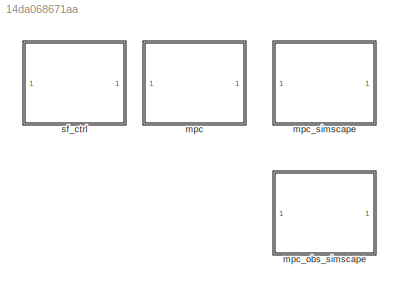
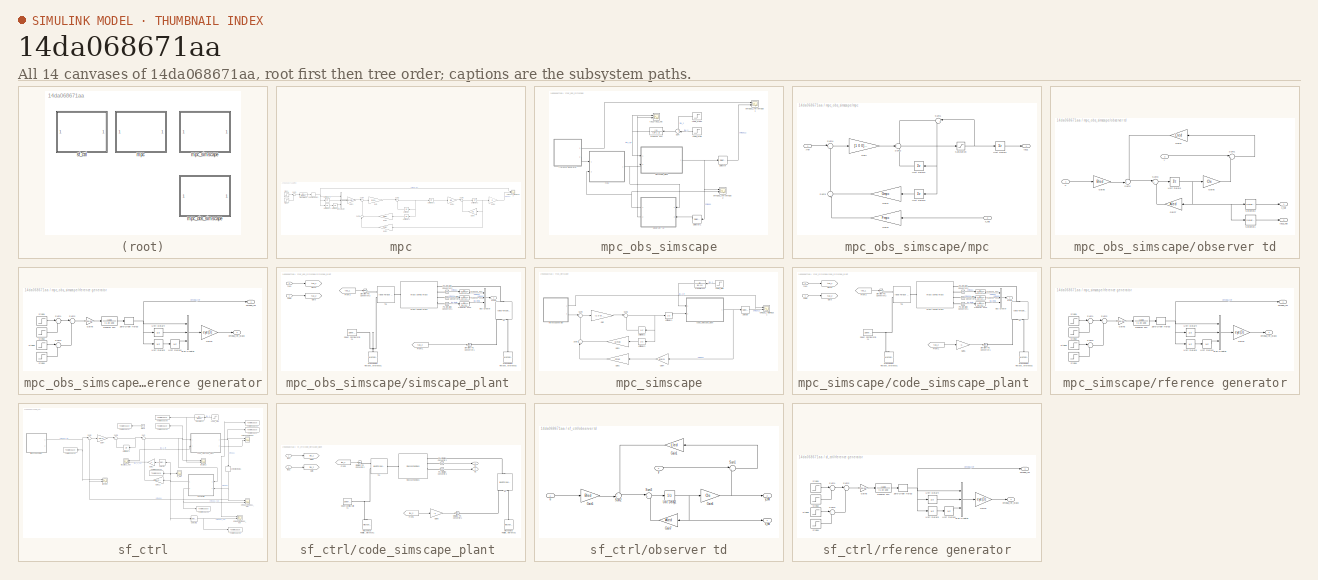
[diagram: thumbnail index - all 14 canvases of the model, root first then tree order]
MODEL slx_14da068671aa
KIND model
CONFIG AbsTol = auto
CONFIG EnableMultiTasking = off
CONFIG FixedStep = tcontrol
CONFIG MaxStep = ts
CONFIG MinStep = auto
CONFIG RelTol = 1e-3
CONFIG SampleTimeConstraint = Unconstrained
CONFIG SolverName = daessc
CONFIG StartTime = 0.0
CONFIG StopTime = simlength
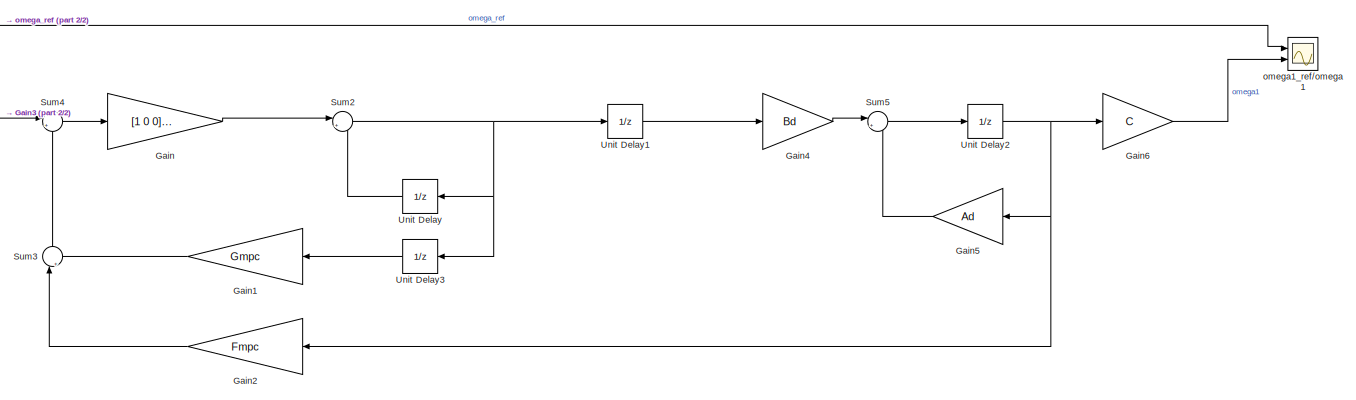
[diagram: mpc - part 1/2, center side, full height]
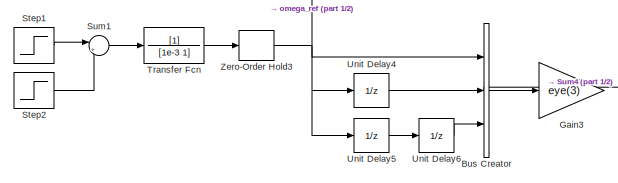
[diagram: mpc - part 2/2, middle left region]
BLOCK [SubSystem] mpc
  Commented = on
  Ports = []
  RequestExecContextInheritance = off
BLOCK [BusCreator] mpc/Bus Creator
  DisplayOption = bar
  InheritFromInputs = on
  Inputs = 3
  Ports = [3, 1]
BLOCK [Gain] mpc/Gain
  Gain = [1 0 0]*Kmpc
  Multiplication = Matrix(K*u)
BLOCK [Gain] mpc/Gain1
  Gain = Gmpc
  Multiplication = Matrix(K*u)
  NameLocation = top
BLOCK [Gain] mpc/Gain2
  Gain = Fmpc
  Multiplication = Matrix(K*u)
  NameLocation = top
BLOCK [Gain] mpc/Gain3
  Gain = eye(3)
  Multiplication = Matrix(K*u)
BLOCK [Gain] mpc/Gain4
  Gain = Bd
  Multiplication = Matrix(K*u)
  NameLocation = top
BLOCK [Gain] mpc/Gain5
  Gain = Ad
  Multiplication = Matrix(K*u)
BLOCK [Gain] mpc/Gain6
  Gain = C
  Multiplication = Matrix(K*u)
  NameLocation = top
BLOCK [Step] mpc/Step1
  SampleTime = 0
  Time = 0.2
BLOCK [Step] mpc/Step2
  SampleTime = 0
  Time = simlength/2
BLOCK [Sum] mpc/Sum1
  Inputs = |+-
  Ports = [2, 1]
BLOCK [Sum] mpc/Sum2
  Inputs = |++
  Ports = [2, 1]
BLOCK [Sum] mpc/Sum3
  Inputs = |++
  NameLocation = right
  Ports = [2, 1]
BLOCK [Sum] mpc/Sum4
  Inputs = |+-
  Ports = [2, 1]
BLOCK [Sum] mpc/Sum5
  Inputs = |++
  Ports = [2, 1]
BLOCK [TransferFcn] mpc/Transfer Fcn
  Denominator = [1e-3 1]
BLOCK [UnitDelay] mpc/Unit Delay
  HasFrameUpgradeWarning = on
  SampleTime = tcontrol
BLOCK [UnitDelay] mpc/Unit Delay1
  HasFrameUpgradeWarning = on
  SampleTime = tcontrol
BLOCK [UnitDelay] mpc/Unit Delay2
  HasFrameUpgradeWarning = on
  SampleTime = tcontrol
BLOCK [UnitDelay] mpc/Unit Delay3
  HasFrameUpgradeWarning = on
  SampleTime = tcontrol
BLOCK [UnitDelay] mpc/Unit Delay4
  HasFrameUpgradeWarning = on
  NameLocation = top
  SampleTime = tcontrol
BLOCK [UnitDelay] mpc/Unit Delay5
  HasFrameUpgradeWarning = on
  NameLocation = top
  SampleTime = tcontrol
BLOCK [UnitDelay] mpc/Unit Delay6
  HasFrameUpgradeWarning = on
  NameLocation = top
  SampleTime = tcontrol
BLOCK [ZeroOrderHold] mpc/Zero-Order Hold3
  SampleTime = tcontrol
BLOCK [Scope] mpc/omega1_ref//omega1
  Floating = off
  NumInputPorts = 2
  Ports = [2]
  ScopeSpecificationString = Simulink.scopes.TimeScopeBlockCfg('CurrentConfiguration', extmgr.ConfigurationSet(extmgr.Configuration('Core','General UI',true),extmgr.Configuration('Core','Source UI',true),extmgr.Configuration('Sources','WiredSimulink',true,'DataLoggingVariableName','ScopeData1'),extmgr.Configuration('Visuals','Time Domain',true,'SerializedDisplays',{struct('MinYLimReal','-0.73647','MaxYLimReal','1.28912','YLab...<+1693ch>
BLOCK [SubSystem] mpc_obs_simscape
  Ports = []
  RequestExecContextInheritance = off
BLOCK [Step] mpc_obs_simscape/Load_step
  After = load_torque
  NameLocation = top
  SampleTime = 0
  Time = simlength/3
BLOCK [Step] mpc_obs_simscape/Load_step1
  After = -2*load_torque
  NameLocation = top
  SampleTime = 0
  Time = 2*simlength/3
BLOCK [Selector] mpc_obs_simscape/Selector
  IndexOptions = Index vector (dialog)
  Indices = [1 2]
  InputPortWidth = 3
  OutputSizes = 1
  Ports = [1, 1]
BLOCK [Selector] mpc_obs_simscape/Selector1
  IndexOptions = Index vector (dialog)
  Indices = 1
  InputPortWidth = 3
  NameLocation = top
  OutputSizes = 1
  Ports = [1, 1]
BLOCK [Sum] mpc_obs_simscape/Sum
  Inputs = ++|
  Ports = [2, 1]
BLOCK [TransferFcn] mpc_obs_simscape/Transfer Fcn
  Denominator = [1e-1 1]
BLOCK [SubSystem] mpc_obs_simscape/mpc
  Ports = [2, 1]
  RequestExecContextInheritance = off
BLOCK [Gain] mpc_obs_simscape/mpc/Gain
  Gain = [1 0 0]*Kmpc
  Multiplication = Matrix(K*u)
BLOCK [Gain] mpc_obs_simscape/mpc/Gain1
  Gain = Gmpc
  Multiplication = Matrix(K*u)
  NameLocation = top
BLOCK [Gain] mpc_obs_simscape/mpc/Gain2
  Gain = Fmpc
  Multiplication = Matrix(K*u)
  NameLocation = top
BLOCK [Saturate] mpc_obs_simscape/mpc/Saturation
  LowerLimit = -2000
  UpperLimit = 2000
BLOCK [Sum] mpc_obs_simscape/mpc/Sum1
  Inputs = |+-
  Ports = [2, 1]
BLOCK [Sum] mpc_obs_simscape/mpc/Sum2
  Inputs = +++
  Ports = [3, 1]
BLOCK [Sum] mpc_obs_simscape/mpc/Sum3
  Inputs = |++
  NameLocation = right
  Ports = [2, 1]
BLOCK [Sum] mpc_obs_simscape/mpc/Sum4
  Inputs = |+-
  Ports = [2, 1]
BLOCK [UnitDelay] mpc_obs_simscape/mpc/Unit Delay1
  HasFrameUpgradeWarning = on
  SampleTime = tcontrol
BLOCK [UnitDelay] mpc_obs_simscape/mpc/Unit Delay2
  HasFrameUpgradeWarning = on
  SampleTime = tcontrol
BLOCK [UnitDelay] mpc_obs_simscape/mpc/Unit Delay3
  HasFrameUpgradeWarning = on
  SampleTime = tcontrol
BLOCK [Outport] mpc_obs_simscape/mpc/tau1
BLOCK [Inport] mpc_obs_simscape/mpc/x_hat
  Port = 2
BLOCK [Inport] mpc_obs_simscape/mpc/yref
BLOCK [SubSystem] mpc_obs_simscape/observer td
  Ports = [2, 2]
  RequestExecContextInheritance = off
BLOCK [Gain] mpc_obs_simscape/observer td/Gain1
  Gain = Lled
  Multiplication = Matrix(K*u)
  NameLocation = top
BLOCK [Gain] mpc_obs_simscape/observer td/Gain5
  Gain = Bled
  Multiplication = Matrix(K*u)
BLOCK [Gain] mpc_obs_simscape/observer td/Gain6
  Gain = Cle
  Multiplication = Matrix(K*u)
BLOCK [Gain] mpc_obs_simscape/observer td/Gain7
  Gain = Aled
  Multiplication = Matrix(K*u)
BLOCK [Selector] mpc_obs_simscape/observer td/Selector1
  IndexOptions = Index vector (dialog)
  Indices = 4
  InputPortWidth = 4
  NameLocation = top
  OutputSizes = 1
  Ports = [1, 1]
BLOCK [Selector] mpc_obs_simscape/observer td/Selector2
  IndexOptions = Index vector (dialog)
  Indices = [1 2 3]
  InputPortWidth = 4
  NameLocation = top
  OutputSizes = 1
  Ports = [1, 1]
BLOCK [Sum] mpc_obs_simscape/observer td/Sum1
  Inputs = |+-
  Ports = [2, 1]
BLOCK [Sum] mpc_obs_simscape/observer td/Sum2
  Inputs = ++|
  Ports = [2, 1]
BLOCK [Sum] mpc_obs_simscape/observer td/Sum3
  Inputs = |++
  Ports = [2, 1]
BLOCK [UnitDelay] mpc_obs_simscape/observer td/Unit Delay1
  HasFrameUpgradeWarning = on
  SampleTime = tcontrol
BLOCK [Outport] mpc_obs_simscape/observer td/tau2_hat
  Port = 2
BLOCK [Inport] mpc_obs_simscape/observer td/u
BLOCK [Outport] mpc_obs_simscape/observer td/x_hat
BLOCK [Inport] mpc_obs_simscape/observer td/y
  Port = 2
BLOCK [Scope] mpc_obs_simscape/omega1_ref//omega1
  Floating = off
  NumInputPorts = 2
  Ports = [2]
  ScopeSpecificationString = Simulink.scopes.TimeScopeBlockCfg('CurrentConfiguration', extmgr.ConfigurationSet(extmgr.Configuration('Core','General UI',true),extmgr.Configuration('Core','Source UI',true),extmgr.Configuration('Sources','WiredSimulink',true,'DataLoggingVariableName','ScopeData1'),extmgr.Configuration('Visuals','Time Domain',true,'SerializedDisplays',{struct('MinYLimReal','-140.72889','MaxYLimReal','15.24853','Y...<+1739ch>
BLOCK [Scope] mpc_obs_simscape/omega1_ref//omega2
  Floating = off
  NumInputPorts = 2
  Ports = [2]
  ScopeSpecificationString = Simulink.scopes.TimeScopeBlockCfg('CurrentConfiguration', extmgr.ConfigurationSet(extmgr.Configuration('Core','General UI',true),extmgr.Configuration('Core','Source UI',true),extmgr.Configuration('Sources','WiredSimulink',true,'DataLoggingVariableName','ScopeData2','SampleTime','ts'),extmgr.Configuration('Visuals','Time Domain',true,'SerializedDisplays',{struct('MinYLimReal','-4636.14788','MaxYLim...<+2503ch>
BLOCK [SubSystem] mpc_obs_simscape/rference generator
  Ports = [0, 2]
  RequestExecContextInheritance = off
BLOCK [BusCreator] mpc_obs_simscape/rference generator/Bus Creator
  DisplayOption = bar
  InheritFromInputs = on
  Inputs = 3
  Ports = [3, 1]
BLOCK [Gain] mpc_obs_simscape/rference generator/Gain3
  Gain = eye(3)
  Multiplication = Matrix(K*u)
BLOCK [Gain] mpc_obs_simscape/rference generator/Gain5
  Gain = 1200/60*2*pi
BLOCK [Step] mpc_obs_simscape/rference generator/Step1
  SampleTime = 0
  Time = 2
BLOCK [Step] mpc_obs_simscape/rference generator/Step2
  SampleTime = 0
  Time = simlength/4
BLOCK [Step] mpc_obs_simscape/rference generator/Step3
  SampleTime = 0
  Time = simlength/2
BLOCK [Step] mpc_obs_simscape/rference generator/Step4
  SampleTime = 0
  Time = 2*simlength/3
BLOCK [Sum] mpc_obs_simscape/rference generator/Sum1
  Inputs = |+-
  Ports = [2, 1]
BLOCK [Sum] mpc_obs_simscape/rference generator/Sum2
  Inputs = |+-
  Ports = [2, 1]
BLOCK [Sum] mpc_obs_simscape/rference generator/Sum3
  Inputs = |+-
  Ports = [2, 1]
BLOCK [TransferFcn] mpc_obs_simscape/rference generator/Transfer Fcn
  Denominator = [1 20 100]
  Numerator = [100]
BLOCK [UnitDelay] mpc_obs_simscape/rference generator/Unit Delay4
  HasFrameUpgradeWarning = on
  NameLocation = top
  SampleTime = tcontrol
BLOCK [UnitDelay] mpc_obs_simscape/rference generator/Unit Delay5
  HasFrameUpgradeWarning = on
  NameLocation = top
  SampleTime = tcontrol
BLOCK [UnitDelay] mpc_obs_simscape/rference generator/Unit Delay6
  HasFrameUpgradeWarning = on
  NameLocation = top
  SampleTime = tcontrol
BLOCK [ZeroOrderHold] mpc_obs_simscape/rference generator/Zero-Order Hold3
  SampleTime = tcontrol
BLOCK [Outport] mpc_obs_simscape/rference generator/omega_ref
BLOCK [Outport] mpc_obs_simscape/rference generator/omega_ref_stack
  Port = 2
BLOCK [SubSystem] mpc_obs_simscape/simscape_plant 
  Ports = [2, 1]
  RequestExecContextInheritance = off
BLOCK [BusCreator] mpc_obs_simscape/simscape_plant /Bus Creator
  DisplayOption = bar
  InheritFromInputs = on
  Inputs = 3
  Ports = [3, 1]
BLOCK [From] mpc_obs_simscape/simscape_plant /From1
  GotoTag = tau_2
BLOCK [From] mpc_obs_simscape/simscape_plant /From2
  GotoTag = tau_1
BLOCK [Goto] mpc_obs_simscape/simscape_plant /Goto
  GotoTag = tau_2
BLOCK [Goto] mpc_obs_simscape/simscape_plant /Goto1
  GotoTag = tau_1
BLOCK [Reference] mpc_obs_simscape/simscape_plant /Mechanical Rotational Reference1  REF=fl_lib/Mechanical/Rotational Elements/Mechanical
Rotational Reference
  NameLocation = right
  Ports = [0, 0, 0, 0, 0, 1]
  SourceBlock = fl_lib/Mechanical/Rotational Elements/Mechanical\nRotational Reference
  SourceProductBaseCode = PW,SS,VE
  SourceType = Mechanical\nRotational Reference
BLOCK [Reference] mpc_obs_simscape/simscape_plant /Mechanical Rotational Reference2  REF=fl_lib/Mechanical/Rotational Elements/Mechanical
Rotational Reference
  NameLocation = right
  Ports = [0, 0, 0, 0, 0, 1]
  SourceBlock = fl_lib/Mechanical/Rotational Elements/Mechanical\nRotational Reference
  SourceProductBaseCode = PW,SS,VE
  SourceType = Mechanical\nRotational Reference
BLOCK [Reference] mpc_obs_simscape/simscape_plant /PS-Simulink Converter1  REF=nesl_utility/PS-Simulink
Converter
  Ports = [0, 1, 0, 0, 0, 1]
  SourceBlock = nesl_utility/PS-Simulink\nConverter
  SourceProductBaseCode = SS,PW,VE
  SourceType = PS-Simulink\nConverter
BLOCK [Reference] mpc_obs_simscape/simscape_plant /PS-Simulink Converter2  REF=nesl_utility/PS-Simulink
Converter
  Ports = [0, 1, 0, 0, 0, 1]
  SourceBlock = nesl_utility/PS-Simulink\nConverter
  SourceProductBaseCode = SS,PW,VE
  SourceType = PS-Simulink\nConverter
BLOCK [Reference] mpc_obs_simscape/simscape_plant /PS-Simulink Converter3  REF=nesl_utility/PS-Simulink
Converter
  NameLocation = top
  Ports = [0, 1, 0, 0, 0, 1]
  SourceBlock = nesl_utility/PS-Simulink\nConverter
  SourceProductBaseCode = SS,PW,VE
  SourceType = PS-Simulink\nConverter
BLOCK [Reference] mpc_obs_simscape/simscape_plant /Simulink-PS Converter1  REF=nesl_utility/Simulink-PS
Converter
  Ports = [1, 0, 0, 0, 0, 0, 1]
  SourceBlock = nesl_utility/Simulink-PS\nConverter
  SourceProductBaseCode = SS,PW,VE
  SourceType = Simulink-PS\nConverter
BLOCK [Reference] mpc_obs_simscape/simscape_plant /Simulink-PS Converter2  REF=nesl_utility/Simulink-PS
Converter
  Ports = [1, 0, 0, 0, 0, 0, 1]
  SourceBlock = nesl_utility/Simulink-PS\nConverter
  SourceProductBaseCode = SS,PW,VE
  SourceType = Simulink-PS\nConverter
BLOCK [Reference] mpc_obs_simscape/simscape_plant /Solver Configuration1  REF=nesl_utility/Solver
Configuration
  Ports = [0, 0, 0, 0, 0, 0, 1]
  SourceBlock = nesl_utility/Solver\nConfiguration
  SourceProductBaseCode = SS,PW,VE
  SourceType = Solver\nConfiguration
BLOCK [Reference] mpc_obs_simscape/simscape_plant /TL  REF=fl_lib/Mechanical/Mechanical Sources/Ideal Torque Source
  NameLocation = right
  Ports = [0, 0, 0, 0, 0, 1, 2]
  SourceBlock = fl_lib/Mechanical/Mechanical Sources/Ideal Torque Source
  SourceProductBaseCode = PW,SS,VE
  SourceType = Ideal Torque Source
BLOCK [Reference] mpc_obs_simscape/simscape_plant /Tm   REF=fl_lib/Mechanical/Mechanical Sources/Ideal Torque Source
  Ports = [0, 0, 0, 0, 0, 1, 2]
  SourceBlock = fl_lib/Mechanical/Mechanical Sources/Ideal Torque Source
  SourceProductBaseCode = PW,SS,VE
  SourceType = Ideal Torque Source
BLOCK [TransferFcn] mpc_obs_simscape/simscape_plant /Transfer Fcn
  Denominator = [1e-5 1]
BLOCK [TransferFcn] mpc_obs_simscape/simscape_plant /Transfer Fcn1
  Denominator = [1e-5 1]
BLOCK [TransferFcn] mpc_obs_simscape/simscape_plant /Transfer Fcn2
  Denominator = [1e-5 1]
BLOCK [Reference] mpc_obs_simscape/simscape_plant /mass spring mass  REF=mass_spring_mass_lib/mass spring mass
  Ports = [0, 0, 0, 0, 0, 1, 4]
  SourceBlock = mass_spring_mass_lib/mass spring mass
  SourceType = mass spring mass
BLOCK [Outport] mpc_obs_simscape/simscape_plant /state
BLOCK [Inport] mpc_obs_simscape/simscape_plant /tau1
  Port = 2
BLOCK [Inport] mpc_obs_simscape/simscape_plant /tau2
BLOCK [Scope] mpc_obs_simscape/tau2//tau2_hat
  Floating = off
  NumInputPorts = 2
  Ports = [2]
  ScopeSpecificationString = Simulink.scopes.TimeScopeBlockCfg('CurrentConfiguration', extmgr.ConfigurationSet(extmgr.Configuration('Core','General UI',true),extmgr.Configuration('Core','Source UI',true),extmgr.Configuration('Sources','WiredSimulink',true,'DataLoggingVariableName','ScopeData1'),extmgr.Configuration('Visuals','Time Domain',true,'SerializedDisplays',{struct('MinYLimReal','-1338.34879','MaxYLimReal','2338.34935'...<+1722ch>
BLOCK [SubSystem] mpc_simscape
  Commented = on
  Ports = []
  RequestExecContextInheritance = off
BLOCK [Gain] mpc_simscape/Gain
  Gain = [1 0 0]*Kmpc
  Multiplication = Matrix(K*u)
BLOCK [Gain] mpc_simscape/Gain1
  Gain = Gmpc
  Multiplication = Matrix(K*u)
  NameLocation = top
BLOCK [Gain] mpc_simscape/Gain2
  Gain = Fmpc
  Multiplication = Matrix(K*u)
  NameLocation = top
BLOCK [Gain] mpc_simscape/Gain4
  Gain = eye(3)
  Multiplication = Matrix(K*u)
  NameLocation = top
BLOCK [Step] mpc_simscape/Load_step
  After = load_torque
  NameLocation = top
  SampleTime = 0
  Time = simlength/3
BLOCK [Selector] mpc_simscape/Selector
  IndexOptions = Index vector (dialog)
  Indices = [1 2]
  InputPortWidth = 3
  OutputSizes = 1
  Ports = [1, 1]
BLOCK [Sum] mpc_simscape/Sum2
  Inputs = |++
  Ports = [2, 1]
BLOCK [Sum] mpc_simscape/Sum3
  Inputs = |++
  NameLocation = right
  Ports = [2, 1]
BLOCK [Sum] mpc_simscape/Sum4
  Inputs = |+-
  Ports = [2, 1]
BLOCK [TransferFcn] mpc_simscape/Transfer Fcn
  Denominator = [1e-1 1]
BLOCK [UnitDelay] mpc_simscape/Unit Delay1
  HasFrameUpgradeWarning = on
  SampleTime = tcontrol
BLOCK [UnitDelay] mpc_simscape/Unit Delay2
  HasFrameUpgradeWarning = on
  SampleTime = tcontrol
BLOCK [UnitDelay] mpc_simscape/Unit Delay3
  HasFrameUpgradeWarning = on
  SampleTime = tcontrol
BLOCK [SubSystem] mpc_simscape/code_simscape_plant 
  Ports = [2, 1]
  RequestExecContextInheritance = off
BLOCK [BusCreator] mpc_simscape/code_simscape_plant /Bus Creator
  DisplayOption = bar
  InheritFromInputs = on
  Inputs = 3
  Ports = [3, 1]
BLOCK [From] mpc_simscape/code_simscape_plant /From1
  GotoTag = tau_2
BLOCK [From] mpc_simscape/code_simscape_plant /From2
  GotoTag = tau_1
BLOCK [Gain] mpc_simscape/code_simscape_plant /Gain5
  Gain = -1
  NameLocation = top
BLOCK [Goto] mpc_simscape/code_simscape_plant /Goto
  GotoTag = tau_2
BLOCK [Goto] mpc_simscape/code_simscape_plant /Goto1
  GotoTag = tau_1
BLOCK [Reference] mpc_simscape/code_simscape_plant /Mechanical Rotational Reference1  REF=fl_lib/Mechanical/Rotational Elements/Mechanical
Rotational Reference
  NameLocation = right
  Ports = [0, 0, 0, 0, 0, 1]
  SourceBlock = fl_lib/Mechanical/Rotational Elements/Mechanical\nRotational Reference
  SourceProductBaseCode = PW,SS,VE
  SourceType = Mechanical\nRotational Reference
BLOCK [Reference] mpc_simscape/code_simscape_plant /Mechanical Rotational Reference2  REF=fl_lib/Mechanical/Rotational Elements/Mechanical
Rotational Reference
  NameLocation = right
  Ports = [0, 0, 0, 0, 0, 1]
  SourceBlock = fl_lib/Mechanical/Rotational Elements/Mechanical\nRotational Reference
  SourceProductBaseCode = PW,SS,VE
  SourceType = Mechanical\nRotational Reference
BLOCK [Reference] mpc_simscape/code_simscape_plant /PS-Simulink Converter1  REF=nesl_utility/PS-Simulink
Converter
  Ports = [0, 1, 0, 0, 0, 1]
  SourceBlock = nesl_utility/PS-Simulink\nConverter
  SourceProductBaseCode = SS,PW,VE
  SourceType = PS-Simulink\nConverter
BLOCK [Reference] mpc_simscape/code_simscape_plant /PS-Simulink Converter2  REF=nesl_utility/PS-Simulink
Converter
  Ports = [0, 1, 0, 0, 0, 1]
  SourceBlock = nesl_utility/PS-Simulink\nConverter
  SourceProductBaseCode = SS,PW,VE
  SourceType = PS-Simulink\nConverter
BLOCK [Reference] mpc_simscape/code_simscape_plant /PS-Simulink Converter3  REF=nesl_utility/PS-Simulink
Converter
  NameLocation = top
  Ports = [0, 1, 0, 0, 0, 1]
  SourceBlock = nesl_utility/PS-Simulink\nConverter
  SourceProductBaseCode = SS,PW,VE
  SourceType = PS-Simulink\nConverter
BLOCK [Reference] mpc_simscape/code_simscape_plant /Simulink-PS Converter1  REF=nesl_utility/Simulink-PS
Converter
  Ports = [1, 0, 0, 0, 0, 0, 1]
  SourceBlock = nesl_utility/Simulink-PS\nConverter
  SourceProductBaseCode = SS,PW,VE
  SourceType = Simulink-PS\nConverter
BLOCK [Reference] mpc_simscape/code_simscape_plant /Simulink-PS Converter2  REF=nesl_utility/Simulink-PS
Converter
  Ports = [1, 0, 0, 0, 0, 0, 1]
  SourceBlock = nesl_utility/Simulink-PS\nConverter
  SourceProductBaseCode = SS,PW,VE
  SourceType = Simulink-PS\nConverter
BLOCK [Reference] mpc_simscape/code_simscape_plant /Solver Configuration1  REF=nesl_utility/Solver
Configuration
  Ports = [0, 0, 0, 0, 0, 0, 1]
  SourceBlock = nesl_utility/Solver\nConfiguration
  SourceProductBaseCode = SS,PW,VE
  SourceType = Solver\nConfiguration
BLOCK [Reference] mpc_simscape/code_simscape_plant /TL  REF=fl_lib/Mechanical/Mechanical Sources/Ideal Torque Source
  NameLocation = right
  Ports = [0, 0, 0, 0, 0, 1, 2]
  SourceBlock = fl_lib/Mechanical/Mechanical Sources/Ideal Torque Source
  SourceProductBaseCode = PW,SS,VE
  SourceType = Ideal Torque Source
BLOCK [Reference] mpc_simscape/code_simscape_plant /Tm   REF=fl_lib/Mechanical/Mechanical Sources/Ideal Torque Source
  Ports = [0, 0, 0, 0, 0, 1, 2]
  SourceBlock = fl_lib/Mechanical/Mechanical Sources/Ideal Torque Source
  SourceProductBaseCode = PW,SS,VE
  SourceType = Ideal Torque Source
BLOCK [TransferFcn] mpc_simscape/code_simscape_plant /Transfer Fcn
  Denominator = [1e-5 1]
BLOCK [TransferFcn] mpc_simscape/code_simscape_plant /Transfer Fcn1
  Denominator = [1e-5 1]
BLOCK [TransferFcn] mpc_simscape/code_simscape_plant /Transfer Fcn2
  Denominator = [1e-5 1]
BLOCK [Reference] mpc_simscape/code_simscape_plant /mass spring mass  REF=mass_spring_mass_lib/mass spring mass
  Ports = [0, 0, 0, 0, 0, 1, 4]
  SourceBlock = mass_spring_mass_lib/mass spring mass
  SourceType = mass spring mass
BLOCK [Outport] mpc_simscape/code_simscape_plant /state
BLOCK [Inport] mpc_simscape/code_simscape_plant /tau1
  Port = 2
BLOCK [Inport] mpc_simscape/code_simscape_plant /tau2
BLOCK [Scope] mpc_simscape/omega1_ref//omega1
  Floating = off
  NumInputPorts = 2
  Ports = [2]
  ScopeSpecificationString = Simulink.scopes.TimeScopeBlockCfg('CurrentConfiguration', extmgr.ConfigurationSet(extmgr.Configuration('Core','General UI',true),extmgr.Configuration('Core','Source UI',true),extmgr.Configuration('Sources','WiredSimulink',true,'DataLoggingVariableName','ScopeData1'),extmgr.Configuration('Visuals','Time Domain',true,'SerializedDisplays',{struct('MinYLimReal','-157.70004','MaxYLimReal','157.69988','...<+1663ch>
BLOCK [SubSystem] mpc_simscape/rference generator
  Ports = [0, 2]
  RequestExecContextInheritance = off
BLOCK [BusCreator] mpc_simscape/rference generator/Bus Creator
  DisplayOption = bar
  InheritFromInputs = on
  Inputs = 3
  Ports = [3, 1]
BLOCK [Gain] mpc_simscape/rference generator/Gain3
  Gain = eye(3)
  Multiplication = Matrix(K*u)
BLOCK [Gain] mpc_simscape/rference generator/Gain5
  Gain = 1200/60*2*pi
BLOCK [Step] mpc_simscape/rference generator/Step1
  SampleTime = 0
  Time = 2
BLOCK [Step] mpc_simscape/rference generator/Step2
  SampleTime = 0
  Time = simlength/4
BLOCK [Step] mpc_simscape/rference generator/Step3
  SampleTime = 0
  Time = simlength/2
BLOCK [Step] mpc_simscape/rference generator/Step4
  SampleTime = 0
  Time = 2*simlength/3
BLOCK [Sum] mpc_simscape/rference generator/Sum1
  Inputs = |+-
  Ports = [2, 1]
BLOCK [Sum] mpc_simscape/rference generator/Sum2
  Inputs = |+-
  Ports = [2, 1]
BLOCK [Sum] mpc_simscape/rference generator/Sum3
  Inputs = |+-
  Ports = [2, 1]
BLOCK [TransferFcn] mpc_simscape/rference generator/Transfer Fcn
  Denominator = [1 20 100]
  Numerator = [100]
BLOCK [UnitDelay] mpc_simscape/rference generator/Unit Delay4
  HasFrameUpgradeWarning = on
  NameLocation = top
  SampleTime = tcontrol
BLOCK [UnitDelay] mpc_simscape/rference generator/Unit Delay5
  HasFrameUpgradeWarning = on
  NameLocation = top
  SampleTime = tcontrol
BLOCK [UnitDelay] mpc_simscape/rference generator/Unit Delay6
  HasFrameUpgradeWarning = on
  NameLocation = top
  SampleTime = tcontrol
BLOCK [ZeroOrderHold] mpc_simscape/rference generator/Zero-Order Hold3
  SampleTime = tcontrol
BLOCK [Outport] mpc_simscape/rference generator/omega_ref
BLOCK [Outport] mpc_simscape/rference generator/omega_ref_stack
  Port = 2
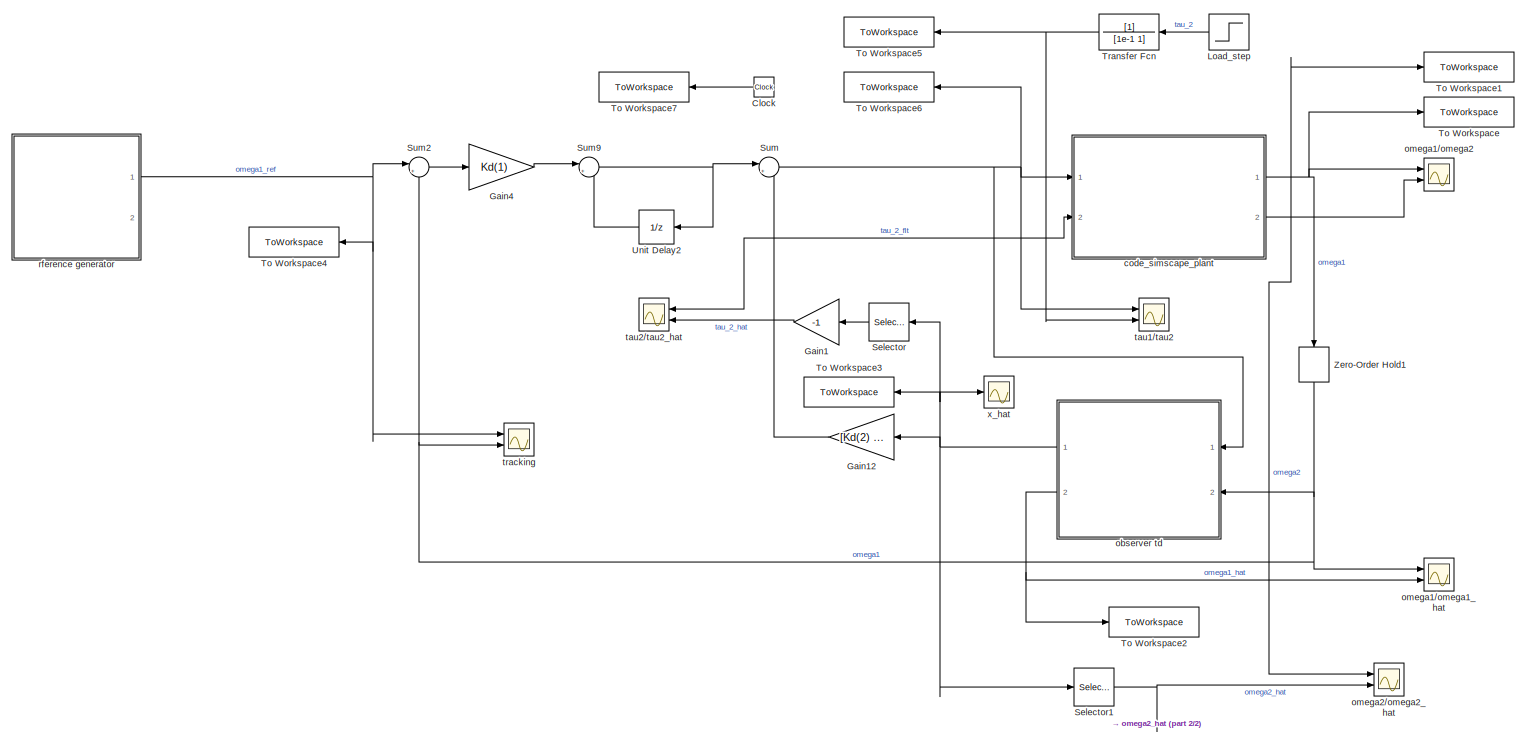
[diagram: sf_ctrl - part 1/2, most of the canvas]
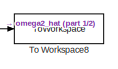
[diagram: sf_ctrl - part 2/2, bottom right region]
BLOCK [SubSystem] sf_ctrl
  Commented = on
  Ports = []
  RequestExecContextInheritance = off
BLOCK [Clock] sf_ctrl/Clock
  NameLocation = top
BLOCK [Gain] sf_ctrl/Gain1
  Gain = -1
  NameLocation = top
BLOCK [Gain] sf_ctrl/Gain12
  Gain = [Kd(2) Kd(3) Kd(4) -1]
  Multiplication = Matrix(K*u)
BLOCK [Gain] sf_ctrl/Gain4
  Gain = Kd(1)
  NameLocation = top
BLOCK [Step] sf_ctrl/Load_step
  After = load_torque
  NameLocation = top
  SampleTime = 0
  Time = simlength/3
BLOCK [Selector] sf_ctrl/Selector
  IndexOptions = Index vector (dialog)
  Indices = 4
  InputPortWidth = 4
  NameLocation = top
  OutputSizes = 1
  Ports = [1, 1]
BLOCK [Selector] sf_ctrl/Selector1
  IndexOptions = Index vector (dialog)
  Indices = 2
  InputPortWidth = 4
  NameLocation = top
  OutputSizes = 1
  Ports = [1, 1]
BLOCK [Sum] sf_ctrl/Sum
  Inputs = |+-
  Ports = [2, 1]
BLOCK [Sum] sf_ctrl/Sum2
  Inputs = |+-
  Ports = [2, 1]
BLOCK [Sum] sf_ctrl/Sum9
  Inputs = |++
  Ports = [2, 1]
BLOCK [ToWorkspace] sf_ctrl/To Workspace
  FixptAsFi = on
  MaxDataPoints = Nc
  Ports = [1]
  SampleTime = tc
  VariableName = omega1
BLOCK [ToWorkspace] sf_ctrl/To Workspace1
  FixptAsFi = on
  MaxDataPoints = Nc
  Ports = [1]
  SampleTime = tc
  VariableName = omega2
BLOCK [ToWorkspace] sf_ctrl/To Workspace2
  FixptAsFi = on
  MaxDataPoints = Nc
  Ports = [1]
  SampleTime = tc
  VariableName = omega1_hat
BLOCK [ToWorkspace] sf_ctrl/To Workspace3
  FixptAsFi = on
  MaxDataPoints = Nc
  NameLocation = top
  Ports = [1]
  SampleTime = tc
  VariableName = x_hat
BLOCK [ToWorkspace] sf_ctrl/To Workspace4
  FixptAsFi = on
  MaxDataPoints = Nc
  NameLocation = top
  Ports = [1]
  SampleTime = tc
  VariableName = omega1_ref
BLOCK [ToWorkspace] sf_ctrl/To Workspace5
  FixptAsFi = on
  MaxDataPoints = Nc
  NameLocation = top
  Ports = [1]
  SampleTime = tc
  VariableName = tau_2
BLOCK [ToWorkspace] sf_ctrl/To Workspace6
  FixptAsFi = on
  MaxDataPoints = Nc
  NameLocation = top
  Ports = [1]
  SampleTime = tc
  VariableName = tau_1
BLOCK [ToWorkspace] sf_ctrl/To Workspace7
  FixptAsFi = on
  MaxDataPoints = Nc
  NameLocation = top
  Ports = [1]
  SampleTime = tc
  VariableName = t
BLOCK [ToWorkspace] sf_ctrl/To Workspace8
  FixptAsFi = on
  MaxDataPoints = Nc
  Ports = [1]
  SampleTime = tc
  VariableName = omega2_hat
BLOCK [TransferFcn] sf_ctrl/Transfer Fcn
  Denominator = [1e-1 1]
BLOCK [UnitDelay] sf_ctrl/Unit Delay2
  HasFrameUpgradeWarning = on
  SampleTime = tcontrol
BLOCK [ZeroOrderHold] sf_ctrl/Zero-Order Hold1
  NameLocation = left
  SampleTime = tcontrol
BLOCK [SubSystem] sf_ctrl/code_simscape_plant 
  Ports = [2, 2]
  RequestExecContextInheritance = off
BLOCK [From] sf_ctrl/code_simscape_plant /From1
  GotoTag = tau_2
BLOCK [From] sf_ctrl/code_simscape_plant /From2
  GotoTag = tau_1
BLOCK [Gain] sf_ctrl/code_simscape_plant /Gain5
  Gain = -1
  NameLocation = top
BLOCK [Goto] sf_ctrl/code_simscape_plant /Goto
  GotoTag = tau_2
BLOCK [Goto] sf_ctrl/code_simscape_plant /Goto1
  GotoTag = tau_1
BLOCK [Reference] sf_ctrl/code_simscape_plant /Mechanical Rotational Reference1  REF=fl_lib/Mechanical/Rotational Elements/Mechanical
Rotational Reference
  NameLocation = right
  Ports = [0, 0, 0, 0, 0, 1]
  SourceBlock = fl_lib/Mechanical/Rotational Elements/Mechanical\nRotational Reference
  SourceProductBaseCode = PW,SS,VE
  SourceType = Mechanical\nRotational Reference
BLOCK [Reference] sf_ctrl/code_simscape_plant /Mechanical Rotational Reference2  REF=fl_lib/Mechanical/Rotational Elements/Mechanical
Rotational Reference
  NameLocation = right
  Ports = [0, 0, 0, 0, 0, 1]
  SourceBlock = fl_lib/Mechanical/Rotational Elements/Mechanical\nRotational Reference
  SourceProductBaseCode = PW,SS,VE
  SourceType = Mechanical\nRotational Reference
BLOCK [Reference] sf_ctrl/code_simscape_plant /PS-Simulink Converter2  REF=nesl_utility/PS-Simulink
Converter
  Ports = [0, 1, 0, 0, 0, 1]
  SourceBlock = nesl_utility/PS-Simulink\nConverter
  SourceProductBaseCode = SS,PW,VE
  SourceType = PS-Simulink\nConverter
BLOCK [Reference] sf_ctrl/code_simscape_plant /PS-Simulink Converter3  REF=nesl_utility/PS-Simulink
Converter
  NameLocation = top
  Ports = [0, 1, 0, 0, 0, 1]
  SourceBlock = nesl_utility/PS-Simulink\nConverter
  SourceProductBaseCode = SS,PW,VE
  SourceType = PS-Simulink\nConverter
BLOCK [Reference] sf_ctrl/code_simscape_plant /Simulink-PS Converter1  REF=nesl_utility/Simulink-PS
Converter
  Ports = [1, 0, 0, 0, 0, 0, 1]
  SourceBlock = nesl_utility/Simulink-PS\nConverter
  SourceProductBaseCode = SS,PW,VE
  SourceType = Simulink-PS\nConverter
BLOCK [Reference] sf_ctrl/code_simscape_plant /Simulink-PS Converter2  REF=nesl_utility/Simulink-PS
Converter
  Ports = [1, 0, 0, 0, 0, 0, 1]
  SourceBlock = nesl_utility/Simulink-PS\nConverter
  SourceProductBaseCode = SS,PW,VE
  SourceType = Simulink-PS\nConverter
BLOCK [Reference] sf_ctrl/code_simscape_plant /Solver Configuration1  REF=nesl_utility/Solver
Configuration
  Ports = [0, 0, 0, 0, 0, 0, 1]
  SourceBlock = nesl_utility/Solver\nConfiguration
  SourceProductBaseCode = SS,PW,VE
  SourceType = Solver\nConfiguration
BLOCK [Reference] sf_ctrl/code_simscape_plant /TL  REF=fl_lib/Mechanical/Mechanical Sources/Ideal Torque Source
  NameLocation = right
  Ports = [0, 0, 0, 0, 0, 1, 2]
  SourceBlock = fl_lib/Mechanical/Mechanical Sources/Ideal Torque Source
  SourceProductBaseCode = PW,SS,VE
  SourceType = Ideal Torque Source
BLOCK [Reference] sf_ctrl/code_simscape_plant /Tm   REF=fl_lib/Mechanical/Mechanical Sources/Ideal Torque Source
  Ports = [0, 0, 0, 0, 0, 1, 2]
  SourceBlock = fl_lib/Mechanical/Mechanical Sources/Ideal Torque Source
  SourceProductBaseCode = PW,SS,VE
  SourceType = Ideal Torque Source
BLOCK [Reference] sf_ctrl/code_simscape_plant /mass spring mass  REF=mass_spring_mass_lib/mass spring mass
  Ports = [0, 0, 0, 0, 0, 1, 4]
  SourceBlock = mass_spring_mass_lib/mass spring mass
  SourceType = mass spring mass
BLOCK [Inport] sf_ctrl/code_simscape_plant /tau1
BLOCK [Inport] sf_ctrl/code_simscape_plant /tau2
  Port = 2
BLOCK [Outport] sf_ctrl/code_simscape_plant /w1
BLOCK [Outport] sf_ctrl/code_simscape_plant /w2
  Port = 2
BLOCK [SubSystem] sf_ctrl/observer td
  NameLocation = top
  Ports = [2, 2]
  RequestExecContextInheritance = off
BLOCK [Gain] sf_ctrl/observer td/Gain1
  Gain = Lled
  Multiplication = Matrix(K*u)
  NameLocation = top
BLOCK [Gain] sf_ctrl/observer td/Gain5
  Gain = Bled
  Multiplication = Matrix(K*u)
BLOCK [Gain] sf_ctrl/observer td/Gain6
  Gain = Cle
  Multiplication = Matrix(K*u)
BLOCK [Gain] sf_ctrl/observer td/Gain7
  Gain = Aled
  Multiplication = Matrix(K*u)
BLOCK [Sum] sf_ctrl/observer td/Sum1
  Inputs = |+-
  Ports = [2, 1]
BLOCK [Sum] sf_ctrl/observer td/Sum2
  Inputs = ++|
  Ports = [2, 1]
BLOCK [Sum] sf_ctrl/observer td/Sum3
  Inputs = |++
  Ports = [2, 1]
BLOCK [UnitDelay] sf_ctrl/observer td/Unit Delay1
  HasFrameUpgradeWarning = on
  SampleTime = tcontrol
BLOCK [Inport] sf_ctrl/observer td/u
BLOCK [Outport] sf_ctrl/observer td/x_hat
BLOCK [Inport] sf_ctrl/observer td/y
  Port = 2
BLOCK [Outport] sf_ctrl/observer td/y_hat
  Port = 2
BLOCK [Scope] sf_ctrl/omega1//omega1_hat
  Floating = off
  NumInputPorts = 2
  Ports = [2]
  ScopeSpecificationString = Simulink.scopes.TimeScopeBlockCfg('CurrentConfiguration', extmgr.ConfigurationSet(extmgr.Configuration('Core','General UI',true),extmgr.Configuration('Core','Source UI',true),extmgr.Configuration('Sources','WiredSimulink',true,'DataLoggingVariableName','ScopeData2'),extmgr.Configuration('Visuals','Time Domain',true,'SerializedDisplays',{struct('MinYLimReal','-0.75834','MaxYLimReal','6.82506','YLab...<+1650ch>
BLOCK [Scope] sf_ctrl/omega1//omega2
  Floating = off
  NameLocation = right
  NumInputPorts = 2
  Ports = [2]
  ScopeSpecificationString = Simulink.scopes.TimeScopeBlockCfg('CurrentConfiguration', extmgr.ConfigurationSet(extmgr.Configuration('Core','General UI',true),extmgr.Configuration('Core','Source UI',true),extmgr.Configuration('Sources','WiredSimulink',true,'DataLoggingVariableName','ScopeData1'),extmgr.Configuration('Visuals','Time Domain',true,'SerializedDisplays',{struct('MinYLimReal','-157.0153','MaxYLimReal','156.955','YLa...<+1655ch>
BLOCK [Scope] sf_ctrl/omega2//omega2_hat
  Floating = off
  NumInputPorts = 2
  Ports = [2]
  ScopeSpecificationString = Simulink.scopes.TimeScopeBlockCfg('CurrentConfiguration', extmgr.ConfigurationSet(extmgr.Configuration('Core','General UI',true),extmgr.Configuration('Core','Source UI',true),extmgr.Configuration('Sources','WiredSimulink',true,'DataLoggingVariableName','ScopeData1'),extmgr.Configuration('Visuals','Time Domain',true,'SerializedDisplays',{struct('MinYLimReal','-157.16624','MaxYLimReal','157.16769','...<+1662ch>
BLOCK [SubSystem] sf_ctrl/rference generator
  Ports = [0, 2]
  RequestExecContextInheritance = off
BLOCK [BusCreator] sf_ctrl/rference generator/Bus Creator
  DisplayOption = bar
  InheritFromInputs = on
  Inputs = 3
  Ports = [3, 1]
BLOCK [Gain] sf_ctrl/rference generator/Gain3
  Gain = eye(3)
  Multiplication = Matrix(K*u)
BLOCK [Gain] sf_ctrl/rference generator/Gain5
  Gain = 1200/60*2*pi
BLOCK [Step] sf_ctrl/rference generator/Step1
  SampleTime = 0
  Time = 2
BLOCK [Step] sf_ctrl/rference generator/Step2
  SampleTime = 0
  Time = simlength/4
BLOCK [Step] sf_ctrl/rference generator/Step3
  SampleTime = 0
  Time = simlength/2
BLOCK [Step] sf_ctrl/rference generator/Step4
  SampleTime = 0
  Time = 2*simlength/3
BLOCK [Sum] sf_ctrl/rference generator/Sum1
  Inputs = |+-
  Ports = [2, 1]
BLOCK [Sum] sf_ctrl/rference generator/Sum2
  Inputs = |+-
  Ports = [2, 1]
BLOCK [Sum] sf_ctrl/rference generator/Sum3
  Inputs = |+-
  Ports = [2, 1]
BLOCK [TransferFcn] sf_ctrl/rference generator/Transfer Fcn
  Denominator = [1 20 100]
  Numerator = [100]
BLOCK [UnitDelay] sf_ctrl/rference generator/Unit Delay4
  HasFrameUpgradeWarning = on
  NameLocation = top
  SampleTime = tcontrol
BLOCK [UnitDelay] sf_ctrl/rference generator/Unit Delay5
  HasFrameUpgradeWarning = on
  NameLocation = top
  SampleTime = tcontrol
BLOCK [UnitDelay] sf_ctrl/rference generator/Unit Delay6
  HasFrameUpgradeWarning = on
  NameLocation = top
  SampleTime = tcontrol
BLOCK [ZeroOrderHold] sf_ctrl/rference generator/Zero-Order Hold3
  SampleTime = tcontrol
BLOCK [Outport] sf_ctrl/rference generator/omega_ref
BLOCK [Outport] sf_ctrl/rference generator/omega_ref_stack
  Port = 2
BLOCK [Scope] sf_ctrl/tau1//tau2
  Floating = off
  NumInputPorts = 2
  Ports = [2]
  ScopeSpecificationString = Simulink.scopes.TimeScopeBlockCfg('CurrentConfiguration', extmgr.ConfigurationSet(extmgr.Configuration('Core','General UI',true),extmgr.Configuration('Core','Source UI',true),extmgr.Configuration('Sources','WiredSimulink',true,'DataLoggingVariableName','ScopeData1'),extmgr.Configuration('Visuals','Time Domain',true,'SerializedDisplays',{struct('MinYLimReal','-1470.78457','MaxYLimReal','1477.62851'...<+1454ch>
BLOCK [Scope] sf_ctrl/tau2//tau2_hat
  Floating = off
  NameLocation = top
  NumInputPorts = 2
  Ports = [2]
  ScopeSpecificationString = Simulink.scopes.TimeScopeBlockCfg('CurrentConfiguration', extmgr.ConfigurationSet(extmgr.Configuration('Core','General UI',true),extmgr.Configuration('Core','Source UI',true),extmgr.Configuration('Sources','WiredSimulink',true,'DataLoggingVariableName','ScopeData1'),extmgr.Configuration('Visuals','Time Domain',true,'SerializedDisplays',{struct('MinYLimReal','-14793173672064490475137392150382160206...<+4051ch>
BLOCK [Scope] sf_ctrl/tracking
  Floating = off
  NumInputPorts = 2
  Ports = [2]
  ScopeSpecificationString = Simulink.scopes.TimeScopeBlockCfg('CurrentConfiguration', extmgr.ConfigurationSet(extmgr.Configuration('Core','General UI',true),extmgr.Configuration('Core','Source UI',true),extmgr.Configuration('Sources','WiredSimulink',true,'DataLoggingVariableName','ScopeData1'),extmgr.Configuration('Visuals','Time Domain',true,'SerializedDisplays',{struct('MinYLimReal','-152.48929','MaxYLimReal','156.56959','...<+1664ch>
BLOCK [Scope] sf_ctrl/x_hat
  Floating = off
  NumInputPorts = 1
  Ports = [1]
  ScopeSpecificationString = Simulink.scopes.TimeScopeBlockCfg('CurrentConfiguration', extmgr.ConfigurationSet(extmgr.Configuration('Core','General UI',true),extmgr.Configuration('Core','Source UI',true),extmgr.Configuration('Sources','WiredSimulink',true,'DataLoggingVariableName','ScopeData2'),extmgr.Configuration('Visuals','Time Domain',true,'SerializedDisplays',{struct('MinYLimReal','-0.45276','MaxYLimReal','4.07485','YLab...<+1503ch>
LINE mpc/Bus Creator:1 -> mpc/Gain3:1
LINE mpc/Gain1:1 -> mpc/Sum3:2
LINE mpc/Gain2:1 -> mpc/Sum3:1
LINE mpc/Gain3:1 -> mpc/Sum4:1
LINE mpc/Gain4:1 -> mpc/Sum5:1
LINE mpc/Gain5:1 -> mpc/Sum5:2
LINE mpc/Gain6:1 -> mpc/omega1_ref//omega1:2
LINE mpc/Gain:1 -> mpc/Sum2:1
LINE mpc/Step1:1 -> mpc/Sum1:1
LINE mpc/Step2:1 -> mpc/Sum1:2
LINE mpc/Sum1:1 -> mpc/Transfer Fcn:1
NET mpc/Sum2:1 -> mpc/Unit Delay1:1, mpc/Unit Delay3:1, mpc/Unit Delay:1
LINE mpc/Sum3:1 -> mpc/Sum4:2
LINE mpc/Sum4:1 -> mpc/Gain:1
LINE mpc/Sum5:1 -> mpc/Unit Delay2:1
LINE mpc/Transfer Fcn:1 -> mpc/Zero-Order Hold3:1
LINE mpc/Unit Delay1:1 -> mpc/Gain4:1
NET mpc/Unit Delay2:1 -> mpc/Gain2:1, mpc/Gain5:1, mpc/Gain6:1
LINE mpc/Unit Delay3:1 -> mpc/Gain1:1
LINE mpc/Unit Delay4:1 -> mpc/Bus Creator:2
LINE mpc/Unit Delay5:1 -> mpc/Unit Delay6:1
LINE mpc/Unit Delay6:1 -> mpc/Bus Creator:3
LINE mpc/Unit Delay:1 -> mpc/Sum2:2
NET mpc/Zero-Order Hold3:1 -> mpc/Bus Creator:1, mpc/Unit Delay4:1, mpc/Unit Delay5:1, mpc/omega1_ref//omega1:1
LINE mpc_obs_simscape/Load_step1:1 -> mpc_obs_simscape/Sum:1
LINE mpc_obs_simscape/Load_step:1 -> mpc_obs_simscape/Sum:2
LINE mpc_obs_simscape/Selector1:1 -> mpc_obs_simscape/observer td:2
LINE mpc_obs_simscape/Selector:1 -> mpc_obs_simscape/omega1_ref//omega1:2
LINE mpc_obs_simscape/Sum:1 -> mpc_obs_simscape/Transfer Fcn:1
NET mpc_obs_simscape/Transfer Fcn:1 -> mpc_obs_simscape/simscape_plant :1, mpc_obs_simscape/tau2//tau2_hat:1
LINE mpc_obs_simscape/mpc/Gain1:1 -> mpc_obs_simscape/mpc/Sum3:2
LINE mpc_obs_simscape/mpc/Gain2:1 -> mpc_obs_simscape/mpc/Sum3:1
LINE mpc_obs_simscape/mpc/Gain:1 -> mpc_obs_simscape/mpc/Sum2:2
NET mpc_obs_simscape/mpc/Saturation:1 -> mpc_obs_simscape/mpc/Sum1:1, mpc_obs_simscape/mpc/Unit Delay1:1
LINE mpc_obs_simscape/mpc/Sum1:1 -> mpc_obs_simscape/mpc/Sum2:1
NET mpc_obs_simscape/mpc/Sum2:1 -> mpc_obs_simscape/mpc/Saturation:1, mpc_obs_simscape/mpc/Sum1:2, mpc_obs_simscape/mpc/Unit Delay2:1, mpc_obs_simscape/mpc/Unit Delay3:1
LINE mpc_obs_simscape/mpc/Sum3:1 -> mpc_obs_simscape/mpc/Sum4:2
LINE mpc_obs_simscape/mpc/Sum4:1 -> mpc_obs_simscape/mpc/Gain:1
LINE mpc_obs_simscape/mpc/Unit Delay1:1 -> mpc_obs_simscape/mpc/tau1:1
LINE mpc_obs_simscape/mpc/Unit Delay2:1 -> mpc_obs_simscape/mpc/Sum2:3
LINE mpc_obs_simscape/mpc/Unit Delay3:1 -> mpc_obs_simscape/mpc/Gain1:1
LINE mpc_obs_simscape/mpc/x_hat:1 -> mpc_obs_simscape/mpc/Gain2:1
LINE mpc_obs_simscape/mpc/yref:1 -> mpc_obs_simscape/mpc/Sum4:1
NET mpc_obs_simscape/mpc:1 -> mpc_obs_simscape/observer td:1, mpc_obs_simscape/simscape_plant :2
LINE mpc_obs_simscape/observer td/Gain1:1 -> mpc_obs_simscape/observer td/Sum2:1
LINE mpc_obs_simscape/observer td/Gain5:1 -> mpc_obs_simscape/observer td/Sum2:2
LINE mpc_obs_simscape/observer td/Gain6:1 -> mpc_obs_simscape/observer td/Sum1:2
LINE mpc_obs_simscape/observer td/Gain7:1 -> mpc_obs_simscape/observer td/Sum3:2
LINE mpc_obs_simscape/observer td/Selector1:1 -> mpc_obs_simscape/observer td/tau2_hat:1
LINE mpc_obs_simscape/observer td/Selector2:1 -> mpc_obs_simscape/observer td/x_hat:1
LINE mpc_obs_simscape/observer td/Sum1:1 -> mpc_obs_simscape/observer td/Gain1:1
LINE mpc_obs_simscape/observer td/Sum2:1 -> mpc_obs_simscape/observer td/Sum3:1
LINE mpc_obs_simscape/observer td/Sum3:1 -> mpc_obs_simscape/observer td/Unit Delay1:1
NET mpc_obs_simscape/observer td/Unit Delay1:1 -> mpc_obs_simscape/observer td/Gain6:1, mpc_obs_simscape/observer td/Gain7:1, mpc_obs_simscape/observer td/Selector1:1, mpc_obs_simscape/observer td/Selector2:1
LINE mpc_obs_simscape/observer td/u:1 -> mpc_obs_simscape/observer td/Gain5:1
LINE mpc_obs_simscape/observer td/y:1 -> mpc_obs_simscape/observer td/Sum1:1
NET mpc_obs_simscape/observer td:1 -> mpc_obs_simscape/mpc:2, mpc_obs_simscape/omega1_ref//omega2:2
LINE mpc_obs_simscape/observer td:2 -> mpc_obs_simscape/tau2//tau2_hat:2
LINE mpc_obs_simscape/rference generator/Bus Creator:1 -> mpc_obs_simscape/rference generator/Gain3:1
LINE mpc_obs_simscape/rference generator/Gain3:1 -> mpc_obs_simscape/rference generator/omega_ref_stack:1
LINE mpc_obs_simscape/rference generator/Gain5:1 -> mpc_obs_simscape/rference generator/Transfer Fcn:1
LINE mpc_obs_simscape/rference generator/Step1:1 -> mpc_obs_simscape/rference generator/Sum1:1
LINE mpc_obs_simscape/rference generator/Step2:1 -> mpc_obs_simscape/rference generator/Sum1:2
LINE mpc_obs_simscape/rference generator/Step3:1 -> mpc_obs_simscape/rference generator/Sum3:1
LINE mpc_obs_simscape/rference generator/Step4:1 -> mpc_obs_simscape/rference generator/Sum3:2
LINE mpc_obs_simscape/rference generator/Sum1:1 -> mpc_obs_simscape/rference generator/Sum2:1
LINE mpc_obs_simscape/rference generator/Sum2:1 -> mpc_obs_simscape/rference generator/Gain5:1
LINE mpc_obs_simscape/rference generator/Sum3:1 -> mpc_obs_simscape/rference generator/Sum2:2
LINE mpc_obs_simscape/rference generator/Transfer Fcn:1 -> mpc_obs_simscape/rference generator/Zero-Order Hold3:1
LINE mpc_obs_simscape/rference generator/Unit Delay4:1 -> mpc_obs_simscape/rference generator/Bus Creator:2
LINE mpc_obs_simscape/rference generator/Unit Delay5:1 -> mpc_obs_simscape/rference generator/Unit Delay6:1
LINE mpc_obs_simscape/rference generator/Unit Delay6:1 -> mpc_obs_simscape/rference generator/Bus Creator:3
NET mpc_obs_simscape/rference generator/Zero-Order Hold3:1 -> mpc_obs_simscape/rference generator/Bus Creator:1, mpc_obs_simscape/rference generator/Unit Delay4:1, mpc_obs_simscape/rference generator/Unit Delay5:1, mpc_obs_simscape/rference generator/omega_ref:1
LINE mpc_obs_simscape/rference generator:1 -> mpc_obs_simscape/omega1_ref//omega1:1
LINE mpc_obs_simscape/rference generator:2 -> mpc_obs_simscape/mpc:1
LINE mpc_obs_simscape/simscape_plant /Bus Creator:1 -> mpc_obs_simscape/simscape_plant /state:1
LINE mpc_obs_simscape/simscape_plant /From1:1 -> mpc_obs_simscape/simscape_plant /Simulink-PS Converter1:1
LINE mpc_obs_simscape/simscape_plant /From2:1 -> mpc_obs_simscape/simscape_plant /Simulink-PS Converter2:1
LINE mpc_obs_simscape/simscape_plant /PS-Simulink Converter1:1 -> mpc_obs_simscape/simscape_plant /Transfer Fcn2:1
LINE mpc_obs_simscape/simscape_plant /PS-Simulink Converter2:1 -> mpc_obs_simscape/simscape_plant /Transfer Fcn:1
LINE mpc_obs_simscape/simscape_plant /PS-Simulink Converter3:1 -> mpc_obs_simscape/simscape_plant /Transfer Fcn1:1
LINE mpc_obs_simscape/simscape_plant /Transfer Fcn1:1 -> mpc_obs_simscape/simscape_plant /Bus Creator:2
LINE mpc_obs_simscape/simscape_plant /Transfer Fcn2:1 -> mpc_obs_simscape/simscape_plant /Bus Creator:3
LINE mpc_obs_simscape/simscape_plant /Transfer Fcn:1 -> mpc_obs_simscape/simscape_plant /Bus Creator:1
LINE mpc_obs_simscape/simscape_plant /tau1:1 -> mpc_obs_simscape/simscape_plant /Goto1:1
LINE mpc_obs_simscape/simscape_plant /tau2:1 -> mpc_obs_simscape/simscape_plant /Goto:1
NET mpc_obs_simscape/simscape_plant :1 -> mpc_obs_simscape/Selector1:1, mpc_obs_simscape/Selector:1, mpc_obs_simscape/omega1_ref//omega2:1
LINE mpc_simscape/Gain1:1 -> mpc_simscape/Sum3:2
LINE mpc_simscape/Gain2:1 -> mpc_simscape/Sum3:1
LINE mpc_simscape/Gain4:1 -> mpc_simscape/Gain2:1
LINE mpc_simscape/Gain:1 -> mpc_simscape/Sum2:1
LINE mpc_simscape/Load_step:1 -> mpc_simscape/Transfer Fcn:1
LINE mpc_simscape/Selector:1 -> mpc_simscape/omega1_ref//omega1:2
NET mpc_simscape/Sum2:1 -> mpc_simscape/Unit Delay1:1, mpc_simscape/Unit Delay2:1, mpc_simscape/Unit Delay3:1
LINE mpc_simscape/Sum3:1 -> mpc_simscape/Sum4:2
LINE mpc_simscape/Sum4:1 -> mpc_simscape/Gain:1
LINE mpc_simscape/Transfer Fcn:1 -> mpc_simscape/code_simscape_plant :1
LINE mpc_simscape/Unit Delay1:1 -> mpc_simscape/code_simscape_plant :2
LINE mpc_simscape/Unit Delay2:1 -> mpc_simscape/Sum2:2
LINE mpc_simscape/Unit Delay3:1 -> mpc_simscape/Gain1:1
LINE mpc_simscape/code_simscape_plant /Bus Creator:1 -> mpc_simscape/code_simscape_plant /state:1
LINE mpc_simscape/code_simscape_plant /From1:1 -> mpc_simscape/code_simscape_plant /Gain5:1
LINE mpc_simscape/code_simscape_plant /From2:1 -> mpc_simscape/code_simscape_plant /Simulink-PS Converter2:1
LINE mpc_simscape/code_simscape_plant /Gain5:1 -> mpc_simscape/code_simscape_plant /Simulink-PS Converter1:1
LINE mpc_simscape/code_simscape_plant /PS-Simulink Converter1:1 -> mpc_simscape/code_simscape_plant /Transfer Fcn2:1
LINE mpc_simscape/code_simscape_plant /PS-Simulink Converter2:1 -> mpc_simscape/code_simscape_plant /Transfer Fcn:1
LINE mpc_simscape/code_simscape_plant /PS-Simulink Converter3:1 -> mpc_simscape/code_simscape_plant /Transfer Fcn1:1
LINE mpc_simscape/code_simscape_plant /Transfer Fcn1:1 -> mpc_simscape/code_simscape_plant /Bus Creator:2
LINE mpc_simscape/code_simscape_plant /Transfer Fcn2:1 -> mpc_simscape/code_simscape_plant /Bus Creator:3
LINE mpc_simscape/code_simscape_plant /Transfer Fcn:1 -> mpc_simscape/code_simscape_plant /Bus Creator:1
LINE mpc_simscape/code_simscape_plant /tau1:1 -> mpc_simscape/code_simscape_plant /Goto1:1
LINE mpc_simscape/code_simscape_plant /tau2:1 -> mpc_simscape/code_simscape_plant /Goto:1
NET mpc_simscape/code_simscape_plant :1 -> mpc_simscape/Gain4:1, mpc_simscape/Selector:1
LINE mpc_simscape/rference generator/Bus Creator:1 -> mpc_simscape/rference generator/Gain3:1
LINE mpc_simscape/rference generator/Gain3:1 -> mpc_simscape/rference generator/omega_ref_stack:1
LINE mpc_simscape/rference generator/Gain5:1 -> mpc_simscape/rference generator/Transfer Fcn:1
LINE mpc_simscape/rference generator/Step1:1 -> mpc_simscape/rference generator/Sum1:1
LINE mpc_simscape/rference generator/Step2:1 -> mpc_simscape/rference generator/Sum1:2
LINE mpc_simscape/rference generator/Step3:1 -> mpc_simscape/rference generator/Sum3:1
LINE mpc_simscape/rference generator/Step4:1 -> mpc_simscape/rference generator/Sum3:2
LINE mpc_simscape/rference generator/Sum1:1 -> mpc_simscape/rference generator/Sum2:1
LINE mpc_simscape/rference generator/Sum2:1 -> mpc_simscape/rference generator/Gain5:1
LINE mpc_simscape/rference generator/Sum3:1 -> mpc_simscape/rference generator/Sum2:2
LINE mpc_simscape/rference generator/Transfer Fcn:1 -> mpc_simscape/rference generator/Zero-Order Hold3:1
LINE mpc_simscape/rference generator/Unit Delay4:1 -> mpc_simscape/rference generator/Bus Creator:2
LINE mpc_simscape/rference generator/Unit Delay5:1 -> mpc_simscape/rference generator/Unit Delay6:1
LINE mpc_simscape/rference generator/Unit Delay6:1 -> mpc_simscape/rference generator/Bus Creator:3
NET mpc_simscape/rference generator/Zero-Order Hold3:1 -> mpc_simscape/rference generator/Bus Creator:1, mpc_simscape/rference generator/Unit Delay4:1, mpc_simscape/rference generator/Unit Delay5:1, mpc_simscape/rference generator/omega_ref:1
LINE mpc_simscape/rference generator:1 -> mpc_simscape/omega1_ref//omega1:1
LINE mpc_simscape/rference generator:2 -> mpc_simscape/Sum4:1
LINE sf_ctrl/Clock:1 -> sf_ctrl/To Workspace7:1
LINE sf_ctrl/Gain12:1 -> sf_ctrl/Sum:2
LINE sf_ctrl/Gain1:1 -> sf_ctrl/tau2//tau2_hat:2
LINE sf_ctrl/Gain4:1 -> sf_ctrl/Sum9:1
LINE sf_ctrl/Load_step:1 -> sf_ctrl/Transfer Fcn:1
NET sf_ctrl/Selector1:1 -> sf_ctrl/To Workspace8:1, sf_ctrl/omega2//omega2_hat:2
LINE sf_ctrl/Selector:1 -> sf_ctrl/Gain1:1
LINE sf_ctrl/Sum2:1 -> sf_ctrl/Gain4:1
NET sf_ctrl/Sum9:1 -> sf_ctrl/Sum:1, sf_ctrl/Unit Delay2:1
NET sf_ctrl/Sum:1 -> sf_ctrl/To Workspace6:1, sf_ctrl/code_simscape_plant :1, sf_ctrl/observer td:1, sf_ctrl/tau1//tau2:1
NET sf_ctrl/Transfer Fcn:1 -> sf_ctrl/To Workspace5:1, sf_ctrl/code_simscape_plant :2, sf_ctrl/tau1//tau2:2, sf_ctrl/tau2//tau2_hat:1
LINE sf_ctrl/Unit Delay2:1 -> sf_ctrl/Sum9:2
NET sf_ctrl/Zero-Order Hold1:1 -> sf_ctrl/Sum2:2, sf_ctrl/observer td:2, sf_ctrl/omega1//omega1_hat:1, sf_ctrl/tracking:2
LINE sf_ctrl/code_simscape_plant /From1:1 -> sf_ctrl/code_simscape_plant /Gain5:1
LINE sf_ctrl/code_simscape_plant /From2:1 -> sf_ctrl/code_simscape_plant /Simulink-PS Converter2:1
LINE sf_ctrl/code_simscape_plant /Gain5:1 -> sf_ctrl/code_simscape_plant /Simulink-PS Converter1:1
LINE sf_ctrl/code_simscape_plant /PS-Simulink Converter2:1 -> sf_ctrl/code_simscape_plant /w1:1
LINE sf_ctrl/code_simscape_plant /PS-Simulink Converter3:1 -> sf_ctrl/code_simscape_plant /w2:1
LINE sf_ctrl/code_simscape_plant /tau1:1 -> sf_ctrl/code_simscape_plant /Goto1:1
LINE sf_ctrl/code_simscape_plant /tau2:1 -> sf_ctrl/code_simscape_plant /Goto:1
NET sf_ctrl/code_simscape_plant :1 -> sf_ctrl/To Workspace:1, sf_ctrl/Zero-Order Hold1:1, sf_ctrl/omega1//omega2:1
NET sf_ctrl/code_simscape_plant :2 -> sf_ctrl/To Workspace1:1, sf_ctrl/omega1//omega2:2, sf_ctrl/omega2//omega2_hat:1
LINE sf_ctrl/observer td/Gain1:1 -> sf_ctrl/observer td/Sum2:1
LINE sf_ctrl/observer td/Gain5:1 -> sf_ctrl/observer td/Sum2:2
NET sf_ctrl/observer td/Gain6:1 -> sf_ctrl/observer td/Sum1:2, sf_ctrl/observer td/y_hat:1
LINE sf_ctrl/observer td/Gain7:1 -> sf_ctrl/observer td/Sum3:2
LINE sf_ctrl/observer td/Sum1:1 -> sf_ctrl/observer td/Gain1:1
LINE sf_ctrl/observer td/Sum2:1 -> sf_ctrl/observer td/Sum3:1
LINE sf_ctrl/observer td/Sum3:1 -> sf_ctrl/observer td/Unit Delay1:1
NET sf_ctrl/observer td/Unit Delay1:1 -> sf_ctrl/observer td/Gain6:1, sf_ctrl/observer td/Gain7:1, sf_ctrl/observer td/x_hat:1
LINE sf_ctrl/observer td/u:1 -> sf_ctrl/observer td/Gain5:1
LINE sf_ctrl/observer td/y:1 -> sf_ctrl/observer td/Sum1:1
NET sf_ctrl/observer td:1 -> sf_ctrl/Gain12:1, sf_ctrl/Selector1:1, sf_ctrl/Selector:1, sf_ctrl/To Workspace3:1, sf_ctrl/x_hat:1
NET sf_ctrl/observer td:2 -> sf_ctrl/To Workspace2:1, sf_ctrl/omega1//omega1_hat:2
LINE sf_ctrl/rference generator/Bus Creator:1 -> sf_ctrl/rference generator/Gain3:1
LINE sf_ctrl/rference generator/Gain3:1 -> sf_ctrl/rference generator/omega_ref_stack:1
LINE sf_ctrl/rference generator/Gain5:1 -> sf_ctrl/rference generator/Transfer Fcn:1
LINE sf_ctrl/rference generator/Step1:1 -> sf_ctrl/rference generator/Sum1:1
LINE sf_ctrl/rference generator/Step2:1 -> sf_ctrl/rference generator/Sum1:2
LINE sf_ctrl/rference generator/Step3:1 -> sf_ctrl/rference generator/Sum3:1
LINE sf_ctrl/rference generator/Step4:1 -> sf_ctrl/rference generator/Sum3:2
LINE sf_ctrl/rference generator/Sum1:1 -> sf_ctrl/rference generator/Sum2:1
LINE sf_ctrl/rference generator/Sum2:1 -> sf_ctrl/rference generator/Gain5:1
LINE sf_ctrl/rference generator/Sum3:1 -> sf_ctrl/rference generator/Sum2:2
LINE sf_ctrl/rference generator/Transfer Fcn:1 -> sf_ctrl/rference generator/Zero-Order Hold3:1
LINE sf_ctrl/rference generator/Unit Delay4:1 -> sf_ctrl/rference generator/Bus Creator:2
LINE sf_ctrl/rference generator/Unit Delay5:1 -> sf_ctrl/rference generator/Unit Delay6:1
LINE sf_ctrl/rference generator/Unit Delay6:1 -> sf_ctrl/rference generator/Bus Creator:3
NET sf_ctrl/rference generator/Zero-Order Hold3:1 -> sf_ctrl/rference generator/Bus Creator:1, sf_ctrl/rference generator/Unit Delay4:1, sf_ctrl/rference generator/Unit Delay5:1, sf_ctrl/rference generator/omega_ref:1
NET sf_ctrl/rference generator:1 -> sf_ctrl/Sum2:1, sf_ctrl/To Workspace4:1, sf_ctrl/tracking:1
PNET net1: mpc_obs_simscape/simscape_plant /Mechanical Rotational Reference1:LConn1 -- mpc_obs_simscape/simscape_plant /Solver Configuration1:RConn1 -- mpc_obs_simscape/simscape_plant /Tm :RConn2
PLINE mpc_obs_simscape/simscape_plant /Mechanical Rotational Reference2:LConn1 -- mpc_obs_simscape/simscape_plant /TL:RConn2
PLINE mpc_obs_simscape/simscape_plant /PS-Simulink Converter1:LConn1 -- mpc_obs_simscape/simscape_plant /mass spring mass:RConn4
PLINE mpc_obs_simscape/simscape_plant /PS-Simulink Converter2:LConn1 -- mpc_obs_simscape/simscape_plant /mass spring mass:RConn2
PLINE mpc_obs_simscape/simscape_plant /PS-Simulink Converter3:LConn1 -- mpc_obs_simscape/simscape_plant /mass spring mass:RConn3
PLINE mpc_obs_simscape/simscape_plant /Simulink-PS Converter1:RConn1 -- mpc_obs_simscape/simscape_plant /TL:RConn1
PLINE mpc_obs_simscape/simscape_plant /Simulink-PS Converter2:RConn1 -- mpc_obs_simscape/simscape_plant /Tm :RConn1
PLINE mpc_obs_simscape/simscape_plant /TL:LConn1 -- mpc_obs_simscape/simscape_plant /mass spring mass:RConn1
PLINE mpc_obs_simscape/simscape_plant /Tm :LConn1 -- mpc_obs_simscape/simscape_plant /mass spring mass:LConn1
PNET net2: mpc_simscape/code_simscape_plant /Mechanical Rotational Reference1:LConn1 -- mpc_simscape/code_simscape_plant /Solver Configuration1:RConn1 -- mpc_simscape/code_simscape_plant /Tm :RConn2
PLINE mpc_simscape/code_simscape_plant /Mechanical Rotational Reference2:LConn1 -- mpc_simscape/code_simscape_plant /TL:RConn2
PLINE mpc_simscape/code_simscape_plant /PS-Simulink Converter1:LConn1 -- mpc_simscape/code_simscape_plant /mass spring mass:RConn4
PLINE mpc_simscape/code_simscape_plant /PS-Simulink Converter2:LConn1 -- mpc_simscape/code_simscape_plant /mass spring mass:RConn2
PLINE mpc_simscape/code_simscape_plant /PS-Simulink Converter3:LConn1 -- mpc_simscape/code_simscape_plant /mass spring mass:RConn3
PLINE mpc_simscape/code_simscape_plant /Simulink-PS Converter1:RConn1 -- mpc_simscape/code_simscape_plant /TL:RConn1
PLINE mpc_simscape/code_simscape_plant /Simulink-PS Converter2:RConn1 -- mpc_simscape/code_simscape_plant /Tm :RConn1
PLINE mpc_simscape/code_simscape_plant /TL:LConn1 -- mpc_simscape/code_simscape_plant /mass spring mass:RConn1
PLINE mpc_simscape/code_simscape_plant /Tm :LConn1 -- mpc_simscape/code_simscape_plant /mass spring mass:LConn1
PNET net3: sf_ctrl/code_simscape_plant /Mechanical Rotational Reference1:LConn1 -- sf_ctrl/code_simscape_plant /Solver Configuration1:RConn1 -- sf_ctrl/code_simscape_plant /Tm :RConn2
PLINE sf_ctrl/code_simscape_plant /Mechanical Rotational Reference2:LConn1 -- sf_ctrl/code_simscape_plant /TL:RConn2
PLINE sf_ctrl/code_simscape_plant /PS-Simulink Converter2:LConn1 -- sf_ctrl/code_simscape_plant /mass spring mass:RConn2
PLINE sf_ctrl/code_simscape_plant /PS-Simulink Converter3:LConn1 -- sf_ctrl/code_simscape_plant /mass spring mass:RConn3
PLINE sf_ctrl/code_simscape_plant /Simulink-PS Converter1:RConn1 -- sf_ctrl/code_simscape_plant /TL:RConn1
PLINE sf_ctrl/code_simscape_plant /Simulink-PS Converter2:RConn1 -- sf_ctrl/code_simscape_plant /Tm :RConn1
PLINE sf_ctrl/code_simscape_plant /TL:LConn1 -- sf_ctrl/code_simscape_plant /mass spring mass:RConn1
PLINE sf_ctrl/code_simscape_plant /Tm :LConn1 -- sf_ctrl/code_simscape_plant /mass spring mass:LConn1
note: NET lines group one-source signal fan-out (src -> all destinations, sorted); 1:1 wires keep LINE; PNET lines group multi-terminal physical nets as a canonical sorted terminal list (undirected conserving connections); 2-terminal nets keep the pairwise PLINE form
